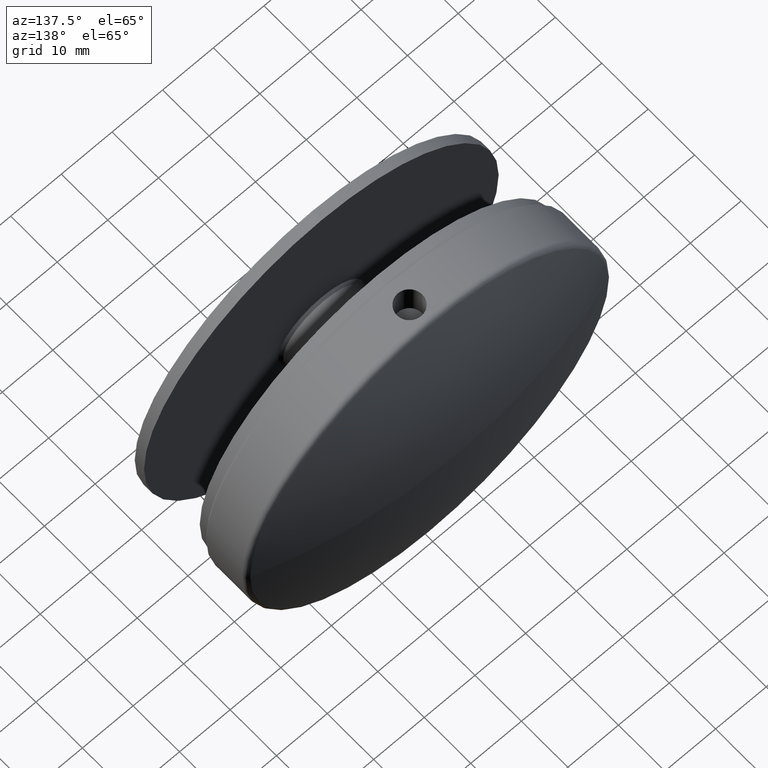
[diagram: clean part render]
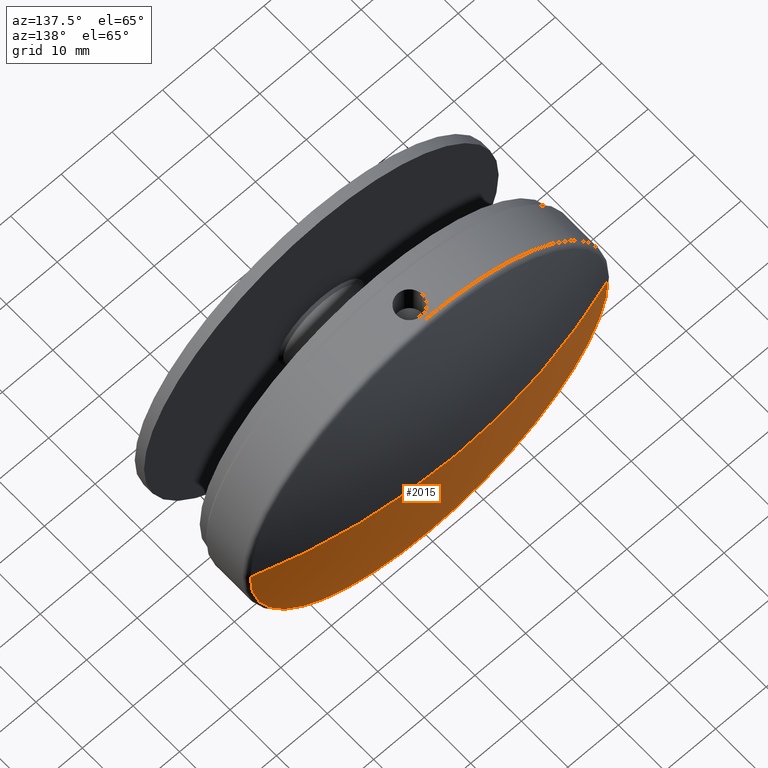
[diagram: same view with one face highlighted and labeled with its STEP entity id]
A machine part, auxiliary view. The second image highlights one B-rep face of the part: STEP entity #2015.
In plain terms, the highlighted spherical surface has radius 111 mm.
Its self-contained STEP definition (entity closure, byte-faithful):
#523 = AXIS2_PLACEMENT_3D ( 'NONE', #8717, #1677, #1825 ) ;
#731 = CARTESIAN_POINT ( 'NONE',  ( 0.000000000000000000, 9.231297782826233700, -35.31818181818182723 ) ) ;
#1026 = ORIENTED_EDGE ( 'NONE', *, *, #3203, .F. ) ;
#1677 = DIRECTION ( 'NONE',  ( 0.000000000000000000, 0.000000000000000000, 1.000000000000000000 ) ) ;
#1825 = DIRECTION ( 'NONE',  ( 1.000000000000000000, 0.000000000000000000, 0.000000000000000000 ) ) ;
#1852 = DIRECTION ( 'NONE',  ( 0.000000000000000000, 0.000000000000000000, -1.000000000000000000 ) ) ;
#1899 = CARTESIAN_POINT ( 'NONE',  ( 35.31818181818183433, 9.231297782826226594, 0.000000000000000000 ) ) ;
#2015 = ADVANCED_FACE ( 'NONE', ( #7735 ), #4671, .T. ) ;
#3198 = EDGE_CURVE ( 'NONE', #14256, #3861, #7359, .T. ) ;
#3203 = EDGE_CURVE ( 'NONE', #3824, #14256, #7185, .T. ) ;
#3824 = VERTEX_POINT ( 'NONE', #14393 ) ;
#3861 = VERTEX_POINT ( 'NONE', #1899 ) ;
#4118 = DIRECTION ( 'NONE',  ( 0.000000000000000000, 0.000000000000000000, -1.000000000000000000 ) ) ;
#4408 = ORIENTED_EDGE ( 'NONE', *, *, #4957, .F. ) ;
#4671 = SPHERICAL_SURFACE ( 'NONE', #523, 110.9999999999999005 ) ;
#4709 = AXIS2_PLACEMENT_3D ( 'NONE', #12639, #11448, #14762 ) ;
#4957 = EDGE_CURVE ( 'NONE', #12740, #3824, #9818, .T. ) ;
#5247 = CARTESIAN_POINT ( 'NONE',  ( 0.000000000000000000, 9.231297782826233700, 0.000000000000000000 ) ) ;
#5485 = CARTESIAN_POINT ( 'NONE',  ( 0.000000000000000000, -95.99999999999990052, 0.000000000000000000 ) ) ;
#5660 = AXIS2_PLACEMENT_3D ( 'NONE', #14362, #12097, #4118 ) ;
#7065 = EDGE_LOOP ( 'NONE', ( #4408, #9049, #12306, #1026 ) ) ;
#7185 = CIRCLE ( 'NONE', #12253, 35.31818181818182723 ) ;
#7359 = CIRCLE ( 'NONE', #5660, 35.31818181818182723 ) ;
#7546 = DIRECTION ( 'NONE',  ( -0.000000000000000000, -1.000000000000000000, -0.000000000000000000 ) ) ;
#7735 = FACE_OUTER_BOUND ( 'NONE', #7065, .T. ) ;
#8337 = AXIS2_PLACEMENT_3D ( 'NONE', #5485, #8969, #10061 ) ;
#8717 = CARTESIAN_POINT ( 'NONE',  ( 0.000000000000000000, -95.99999999999990052, 0.000000000000000000 ) ) ;
#8969 = DIRECTION ( 'NONE',  ( 1.224646799147353207E-16, -0.000000000000000000, 1.000000000000000000 ) ) ;
#9049 = ORIENTED_EDGE ( 'NONE', *, *, #9849, .T. ) ;
#9818 = CIRCLE ( 'NONE', #8337, 110.9999999999999005 ) ;
#9849 = EDGE_CURVE ( 'NONE', #12740, #3861, #13177, .T. ) ;
#10061 = DIRECTION ( 'NONE',  ( 1.000000000000000000, 0.000000000000000000, -1.224646799147353207E-16 ) ) ;
#11448 = DIRECTION ( 'NONE',  ( 0.000000000000000000, 0.000000000000000000, -1.000000000000000000 ) ) ;
#12097 = DIRECTION ( 'NONE',  ( -0.000000000000000000, -1.000000000000000000, -0.000000000000000000 ) ) ;
#12253 = AXIS2_PLACEMENT_3D ( 'NONE', #5247, #7546, #1852 ) ;
#12306 = ORIENTED_EDGE ( 'NONE', *, *, #3198, .F. ) ;
#12639 = CARTESIAN_POINT ( 'NONE',  ( 0.000000000000000000, -95.99999999999990052, 0.000000000000000000 ) ) ;
#12740 = VERTEX_POINT ( 'NONE', #13213 ) ;
#13177 = CIRCLE ( 'NONE', #4709, 110.9999999999999005 ) ;
#13213 = CARTESIAN_POINT ( 'NONE',  ( 6.796789735267804667E-15, 15.00000000000000000, 0.000000000000000000 ) ) ;
#14256 = VERTEX_POINT ( 'NONE', #731 ) ;
#14362 = CARTESIAN_POINT ( 'NONE',  ( 0.000000000000000000, 9.231297782826233700, 0.000000000000000000 ) ) ;
#14393 = CARTESIAN_POINT ( 'NONE',  ( -35.31818181818183433, 9.231297782826226594, 4.325229831534063396E-15 ) ) ;
#14762 = DIRECTION ( 'NONE',  ( -1.000000000000000000, 0.000000000000000000, 0.000000000000000000 ) ) ;